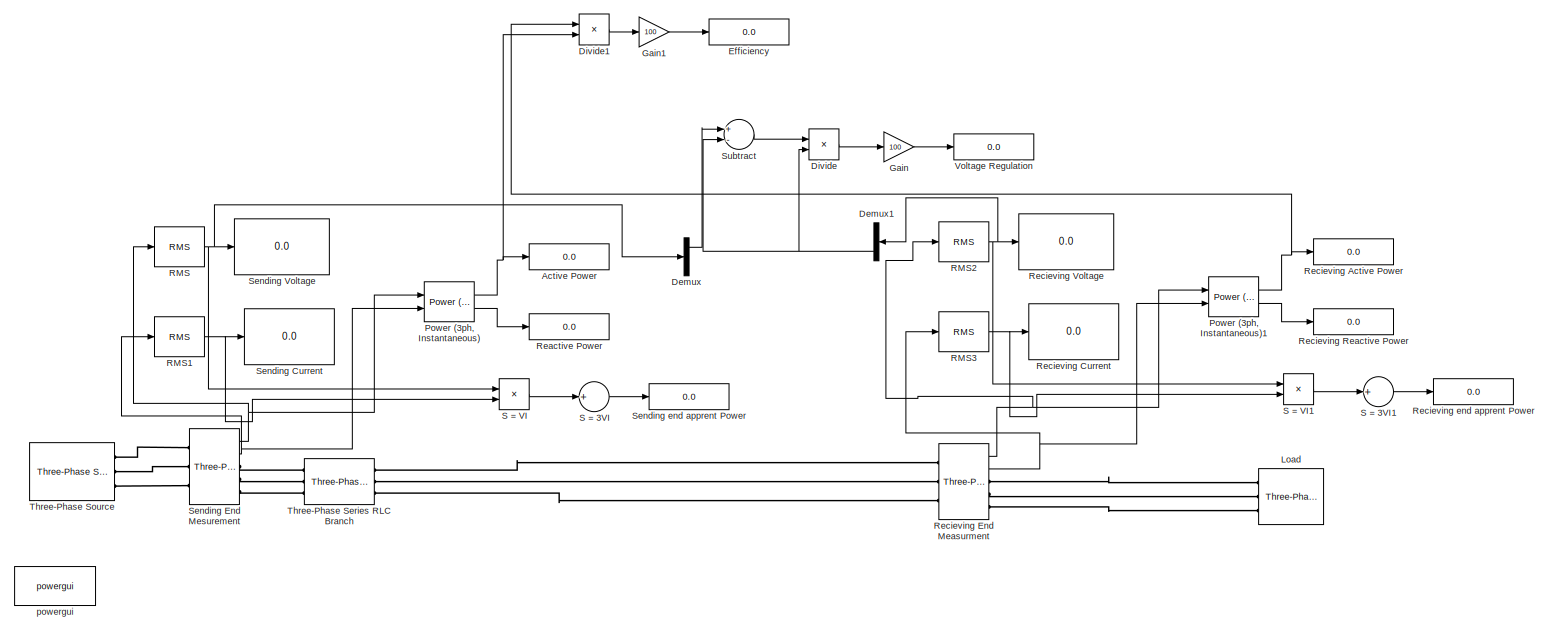
[diagram: root canvas - part 1/1, most of the canvas]
MODEL slx_f16da08fdad9
KIND model
CONFIG AbsTol = auto
CONFIG EnableMultiTasking = off
CONFIG FixedStep = auto
CONFIG MaxStep = auto
CONFIG MinStep = auto
CONFIG RelTol = 1e-3
CONFIG SampleTimeConstraint = Unconstrained
CONFIG Solver = VariableStepAuto
CONFIG SolverName = VariableStepAuto
CONFIG StartTime = 0.0
CONFIG StopTime = 1
BLOCK [Display] Active Power
  Decimation = 1
  Ports = [1]
BLOCK [Demux] Demux
  DisplayOption = bar
  Outputs = 3
  Ports = [1, 3]
BLOCK [Demux] Demux1
  DisplayOption = bar
  Outputs = 3
  Ports = [1, 3]
BLOCK [Product] Divide
  InputSameDT = off
  Inputs = */
  OutDataTypeStr = Inherit: Inherit via internal rule
  Ports = [2, 1]
  RndMeth = Floor
  SaturateOnIntegerOverflow = off
BLOCK [Product] Divide1
  InputSameDT = off
  Inputs = */
  OutDataTypeStr = Inherit: Inherit via internal rule
  Ports = [2, 1]
  RndMeth = Floor
  SaturateOnIntegerOverflow = off
BLOCK [Display] Efficiency 
  Decimation = 1
  Ports = [1]
BLOCK [Gain] Gain
  Gain = 100
  OutDataTypeStr = Inherit: Inherit via internal rule
  ParamDataTypeStr = Inherit: Inherit via internal rule
  SaturateOnIntegerOverflow = off
BLOCK [Gain] Gain1
  Gain = 100
  OutDataTypeStr = Inherit: Inherit via internal rule
  ParamDataTypeStr = Inherit: Inherit via internal rule
  SaturateOnIntegerOverflow = off
BLOCK [Reference] Load  REF=powerlib/Elements/Three-Phase
Series RLC Load
  AttributesFormatString = \n
  Ports = [0, 0, 0, 0, 0, 3]
  SourceBlock = powerlib/Elements/Three-Phase\nSeries RLC Load
  SourceProductBaseCode = PS
  SourceProductName = Simscape Power Systems
  SourceType = Three-Phase Series RLC Load
BLOCK [Reference] Power (3ph, Instantaneous)  REF=powerlib_meascontrol/Measurements/Power
(3ph, Instantaneous)
  Ports = [2, 2]
  SourceBlock = powerlib_meascontrol/Measurements/Power\n(3ph, Instantaneous)
  SourceProductBaseCode = PS
  SourceProductName = Simscape Power Systems
  SourceType = Power (3ph, Instantaneous)
BLOCK [Reference] Power (3ph, Instantaneous)1  REF=powerlib_meascontrol/Measurements/Power
(3ph, Instantaneous)
  Ports = [2, 2]
  SourceBlock = powerlib_meascontrol/Measurements/Power\n(3ph, Instantaneous)
  SourceProductBaseCode = PS
  SourceProductName = Simscape Power Systems
  SourceType = Power (3ph, Instantaneous)
BLOCK [Reference] RMS  REF=powerlib_meascontrol/Measurements/RMS
  Ports = [1, 1]
  SourceBlock = powerlib_meascontrol/Measurements/RMS
  SourceProductBaseCode = PS
  SourceProductName = Simscape Power Systems
  SourceType = RMS
BLOCK [Reference] RMS1  REF=powerlib_meascontrol/Measurements/RMS
  Ports = [1, 1]
  SourceBlock = powerlib_meascontrol/Measurements/RMS
  SourceProductBaseCode = PS
  SourceProductName = Simscape Power Systems
  SourceType = RMS
BLOCK [Reference] RMS2  REF=powerlib_meascontrol/Measurements/RMS
  Ports = [1, 1]
  SourceBlock = powerlib_meascontrol/Measurements/RMS
  SourceProductBaseCode = PS
  SourceProductName = Simscape Power Systems
  SourceType = RMS
BLOCK [Reference] RMS3  REF=powerlib_meascontrol/Measurements/RMS
  Ports = [1, 1]
  SourceBlock = powerlib_meascontrol/Measurements/RMS
  SourceProductBaseCode = PS
  SourceProductName = Simscape Power Systems
  SourceType = RMS
BLOCK [Display] Reactive Power
  Decimation = 1
  Ports = [1]
BLOCK [Display] Recieving Active Power
  Decimation = 1
  Ports = [1]
BLOCK [Display] Recieving Current 
  Decimation = 1
  Ports = [1]
BLOCK [Reference] Recieving End Measurment  REF=powerlib/Measurements/Three-Phase
V-I Measurement
  Ports = [0, 2, 0, 0, 0, 3, 3]
  SourceBlock = powerlib/Measurements/Three-Phase\nV-I Measurement
  SourceProductBaseCode = PS
  SourceProductName = Simscape Power Systems
  SourceType = Three-Phase VI Measurement
BLOCK [Display] Recieving Reactive Power
  Decimation = 1
  Ports = [1]
BLOCK [Display] Recieving Voltage 
  Decimation = 1
  Ports = [1]
BLOCK [Display] Recieving end apprent Power
  Decimation = 1
  Ports = [1]
BLOCK [Sum] S = 3VI
  InputSameDT = off
  Inputs = +
  OutDataTypeStr = Inherit: Inherit via internal rule
  Ports = [1, 1]
  SaturateOnIntegerOverflow = off
BLOCK [Sum] S = 3VI1
  InputSameDT = off
  Inputs = +
  OutDataTypeStr = Inherit: Inherit via internal rule
  Ports = [1, 1]
  SaturateOnIntegerOverflow = off
BLOCK [Product] S = VI
  InputSameDT = off
  OutDataTypeStr = Inherit: Inherit via internal rule
  Ports = [2, 1]
  RndMeth = Floor
  SaturateOnIntegerOverflow = off
BLOCK [Product] S = VI1
  InputSameDT = off
  OutDataTypeStr = Inherit: Inherit via internal rule
  Ports = [2, 1]
  RndMeth = Floor
  SaturateOnIntegerOverflow = off
BLOCK [Display] Sending Current 
  Decimation = 1
  Ports = [1]
BLOCK [Reference] Sending End Mesurement  REF=powerlib/Measurements/Three-Phase
V-I Measurement
  Ports = [0, 2, 0, 0, 0, 3, 3]
  SourceBlock = powerlib/Measurements/Three-Phase\nV-I Measurement
  SourceProductBaseCode = PS
  SourceProductName = Simscape Power Systems
  SourceType = Three-Phase VI Measurement
BLOCK [Display] Sending Voltage 
  Decimation = 1
  Ports = [1]
BLOCK [Display] Sending end apprent Power
  Decimation = 1
  Ports = [1]
BLOCK [Sum] Subtract
  InputSameDT = off
  Inputs = +-
  OutDataTypeStr = Inherit: Inherit via internal rule
  Ports = [2, 1]
  SaturateOnIntegerOverflow = off
BLOCK [Reference] Three-Phase Series RLC Branch  REF=powerlib/Elements/Three-Phase
Series RLC Branch
  AttributesFormatString = \n
  Ports = [0, 0, 0, 0, 0, 3, 3]
  SourceBlock = powerlib/Elements/Three-Phase\nSeries RLC Branch
  SourceProductBaseCode = PS
  SourceProductName = Simscape Power Systems
  SourceType = Three-Phase Series RLC Branch
BLOCK [Reference] Three-Phase Source  REF=powerlib/Electrical
Sources/Three-Phase Source
  Ports = [0, 0, 0, 0, 0, 0, 3]
  SourceBlock = powerlib/Electrical\nSources/Three-Phase Source
  SourceProductBaseCode = PS
  SourceProductName = Simscape Power Systems
  SourceType = Three-Phase Source
BLOCK [Display] Voltage Regulation
  Decimation = 1
  Ports = [1]
BLOCK [Reference] powergui  REF=powerlib/powergui
  Ports = []
  Priority = 1
  SourceBlock = powerlib/powergui
  SourceProductBaseCode = PS
  SourceProductName = Simscape Power Systems
  SourceType = PSB option menu block
NET Demux1:3 -> Divide:2, Subtract:2
LINE Demux:1 -> Subtract:1
LINE Divide1:1 -> Gain1:1
LINE Divide:1 -> Gain:1
LINE Gain1:1 -> Efficiency :1
LINE Gain:1 -> Voltage Regulation:1
NET Power (3ph, Instantaneous)1:1 -> Divide1:1, Recieving Active Power:1
LINE Power (3ph, Instantaneous)1:2 -> Recieving Reactive Power:1
NET Power (3ph, Instantaneous):1 -> Active Power:1, Divide1:2
LINE Power (3ph, Instantaneous):2 -> Reactive Power:1
NET RMS1:1 -> S = VI:2, Sending Current :1
NET RMS2:1 -> Demux1:1, Recieving Voltage :1, S = VI1:1
NET RMS3:1 -> Recieving Current :1, S = VI1:2
NET RMS:1 -> Demux:1, S = VI:1, Sending Voltage :1
NET Recieving End Measurment:1 -> Power (3ph, Instantaneous)1:1, RMS2:1
NET Recieving End Measurment:2 -> Power (3ph, Instantaneous)1:2, RMS3:1
LINE S = 3VI1:1 -> Recieving end apprent Power:1
LINE S = 3VI:1 -> Sending end apprent Power:1
LINE S = VI1:1 -> S = 3VI1:1
LINE S = VI:1 -> S = 3VI:1
NET Sending End Mesurement:1 -> Power (3ph, Instantaneous):1, RMS:1
NET Sending End Mesurement:2 -> Power (3ph, Instantaneous):2, RMS1:1
LINE Subtract:1 -> Divide:1
PLINE Load:LConn1 -- Recieving End Measurment:RConn1
PLINE Load:LConn2 -- Recieving End Measurment:RConn2
PLINE Load:LConn3 -- Recieving End Measurment:RConn3
PLINE Recieving End Measurment:LConn1 -- Three-Phase Series RLC Branch:RConn1
PLINE Recieving End Measurment:LConn2 -- Three-Phase Series RLC Branch:RConn2
PLINE Recieving End Measurment:LConn3 -- Three-Phase Series RLC Branch:RConn3
PLINE Sending End Mesurement:LConn1 -- Three-Phase Source:RConn1
PLINE Sending End Mesurement:LConn2 -- Three-Phase Source:RConn2
PLINE Sending End Mesurement:LConn3 -- Three-Phase Source:RConn3
PLINE Sending End Mesurement:RConn1 -- Three-Phase Series RLC Branch:LConn1
PLINE Sending End Mesurement:RConn2 -- Three-Phase Series RLC Branch:LConn2
PLINE Sending End Mesurement:RConn3 -- Three-Phase Series RLC Branch:LConn3
note: NET lines group one-source signal fan-out (src -> all destinations, sorted); 1:1 wires keep LINE
